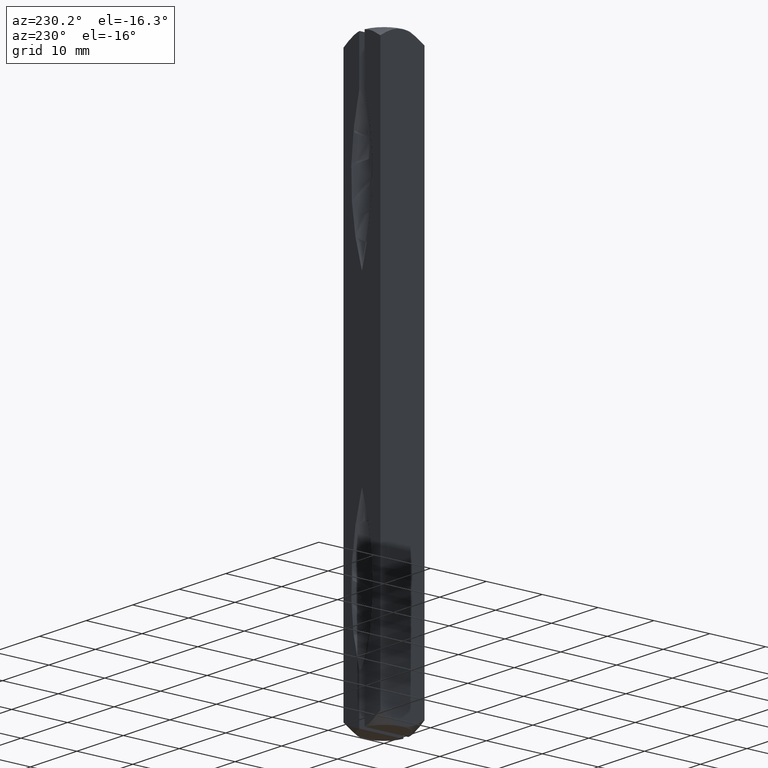
[diagram: clean part render]
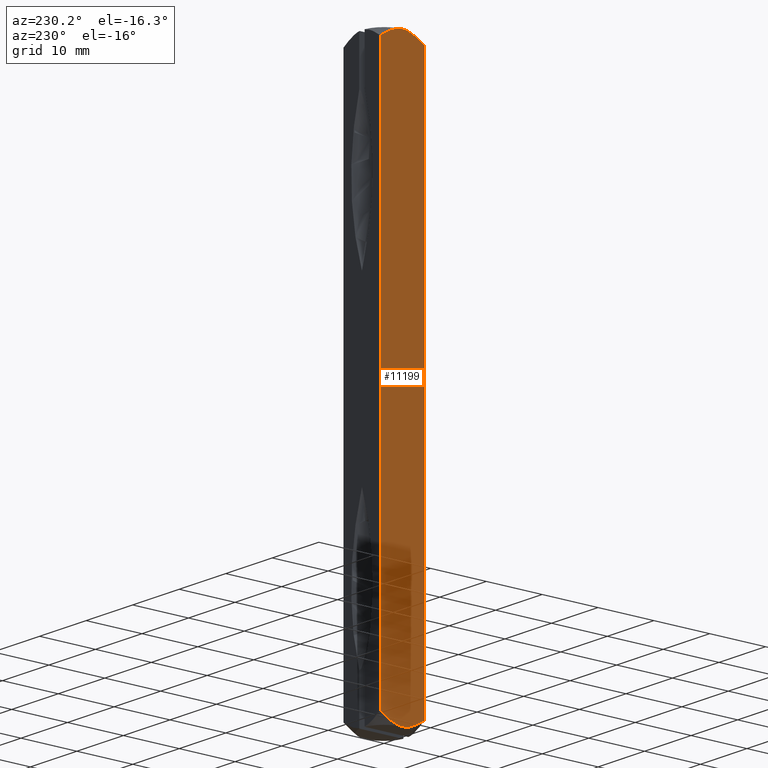
[diagram: same view with one face highlighted and labeled with its STEP entity id]
A machine part, auxiliary view. The second image highlights one B-rep face of the part: STEP entity #11199.
In plain terms, the highlighted planar face has unit normal (1, 0, -0).
Its self-contained STEP definition (entity closure, byte-faithful):
#62 = EDGE_CURVE ( 'NONE', #3710, #4992, #6410, .T. ) ;
#83 = CARTESIAN_POINT ( 'NONE',  ( -3.950000000000000178, -1.426481765605648322, 49.76418261868120396 ) ) ;
#98 = CARTESIAN_POINT ( 'NONE',  ( -3.949999999999999734, 1.429762475793790122, -49.76282657858041603 ) ) ;
#112 = CARTESIAN_POINT ( 'NONE',  ( -3.950000000000000178, 3.949999999999999734, -48.36385642862627776 ) ) ;
#121 = VERTEX_POINT ( 'NONE', #7784 ) ;
#152 = CARTESIAN_POINT ( 'NONE',  ( -3.950000000000000178, 3.655973563918085922, -48.57176451542790829 ) ) ;
#173 = CARTESIAN_POINT ( 'NONE',  ( -3.949999999999999734, -2.417758574424760720, 49.32781484060201649 ) ) ;
#179 = DIRECTION ( 'NONE',  ( 1.000000000000000000, 2.195852501236464545E-16, -0.000000000000000000 ) ) ;
#476 = CARTESIAN_POINT ( 'NONE',  ( -3.950000000000000178, 3.949999999999999734, 48.36385642862627776 ) ) ;
#620 = CARTESIAN_POINT ( 'NONE',  ( -3.949999999999998845, -3.950000000000000178, 50.00000000000000000 ) ) ;
#673 = B_SPLINE_CURVE_WITH_KNOTS ( 'NONE', 3,
 ( #10994, #8117, #4625, #9036, #173, #9936, #83, #7253, #6434, #5548 ),
 .UNSPECIFIED., .F., .F.,
 ( 4, 2, 2, 2, 4 ),
 ( 0.004661118549124539795, 0.005743105757456757124, 0.006825092965788974453, 0.007907080174121193517, 0.008989067382453410845 ),
 .UNSPECIFIED. ) ;
#898 = EDGE_LOOP ( 'NONE', ( #8969, #5207, #4793, #4719, #4458, #8557 ) ) ;
#929 = CARTESIAN_POINT ( 'NONE',  ( -3.949999999999997957, -1.764010919286908674, -49.63366200965240438 ) ) ;
#1483 = CARTESIAN_POINT ( 'NONE',  ( -3.950000000000000178, 1.773176239120489051, 49.62994502284323772 ) ) ;
#1515 = CARTESIAN_POINT ( 'NONE',  ( -3.950000000000000178, 0.7264207757584910663, 49.93773969935142532 ) ) ;
#1690 = VERTEX_POINT ( 'NONE', #7367 ) ;
#1835 = CARTESIAN_POINT ( 'NONE',  ( -3.949999999999999734, -0.7197550765702169784, -49.94946699896204478 ) ) ;
#1930 = CARTESIAN_POINT ( 'NONE',  ( -3.950000000000001954, 3.357042091706849529, -48.77184744586126897 ) ) ;
#2331 = CARTESIAN_POINT ( 'NONE',  ( -3.950000000000000178, 3.949999999999999734, 48.36385642862627776 ) ) ;
#2491 = EDGE_CURVE ( 'NONE', #1690, #5080, #6700, .T. ) ;
#2688 = CARTESIAN_POINT ( 'NONE',  ( -3.949999999999999734, 0.9040495695010957178, -49.90139150385238054 ) ) ;
#2705 = CARTESIAN_POINT ( 'NONE',  ( -3.949999999999997957, -2.734892828548048715, -49.15188573252412141 ) ) ;
#3231 = CARTESIAN_POINT ( 'NONE',  ( -3.950000000000000178, 0.3655058691550639449, 49.98715504755813299 ) ) ;
#3272 = VERTEX_POINT ( 'NONE', #112 ) ;
#3278 = CARTESIAN_POINT ( 'NONE',  ( -3.949999999999999734, 0.9040495695010957178, 49.90139150385238054 ) ) ;
#3697 = CARTESIAN_POINT ( 'NONE',  ( -3.950000000000000178, 0.1815125156036552778, -50.00000000000001421 ) ) ;
#3710 = VERTEX_POINT ( 'NONE', #8819 ) ;
#3870 = PLANE ( 'NONE',  #6954 ) ;
#4045 = CARTESIAN_POINT ( 'NONE',  ( -3.950000000000001066, 2.428864778028199556, 49.32203012751581639 ) ) ;
#4458 = ORIENTED_EDGE ( 'NONE', *, *, #10352, .T. ) ;
#4572 = CARTESIAN_POINT ( 'NONE',  ( -3.950000000000000178, 0.3655058691550639449, -49.98715504755813299 ) ) ;
#4625 = CARTESIAN_POINT ( 'NONE',  ( -3.949999999999998845, -3.354668977539354113, 48.77350836096716336 ) ) ;
#4627 = B_SPLINE_CURVE_WITH_KNOTS ( 'NONE', 3,
 ( #9051, #3697, #4572, #10861, #2688, #98, #6311, #10776, #7280, #1930, #152, #8938 ),
 .UNSPECIFIED., .F., .F.,
 ( 4, 2, 2, 2, 2, 4 ),
 ( 0.008989067382453410845, 0.009531113065977271301, 0.01007315874950113349, 0.01115725011654884920, 0.01224134148359656490, 0.01332543285064428061 ),
 .UNSPECIFIED. ) ;
#4719 = ORIENTED_EDGE ( 'NONE', *, *, #62, .F. ) ;
#4740 = DIRECTION ( 'NONE',  ( -2.195852501236464545E-16, 1.000000000000000000, 0.000000000000000000 ) ) ;
#4793 = ORIENTED_EDGE ( 'NONE', *, *, #6960, .F. ) ;
#4961 = CARTESIAN_POINT ( 'NONE',  ( -3.949999999999998845, -3.950000000000000178, -48.36385642862627776 ) ) ;
#4992 = VERTEX_POINT ( 'NONE', #4961 ) ;
#5012 = CARTESIAN_POINT ( 'NONE',  ( -3.950000000000000178, 3.655973563918085922, 48.57176451542790829 ) ) ;
#5080 = VERTEX_POINT ( 'NONE', #2331 ) ;
#5207 = ORIENTED_EDGE ( 'NONE', *, *, #7351, .F. ) ;
#5405 = DIRECTION ( 'NONE',  ( -0.000000000000000000, -0.000000000000000000, -1.000000000000000000 ) ) ;
#5436 = CARTESIAN_POINT ( 'NONE',  ( -3.949999999999999734, -0.3623204205936896294, -50.00000000000002132 ) ) ;
#5548 = CARTESIAN_POINT ( 'NONE',  ( -3.950000000000000178, -8.673617379884035472E-16, 50.00000000000000000 ) ) ;
#6311 = CARTESIAN_POINT ( 'NONE',  ( -3.950000000000000178, 1.773176239120489051, -49.62994502284323772 ) ) ;
#6363 = CARTESIAN_POINT ( 'NONE',  ( -3.950000000000000178, -8.673617379884035472E-16, -50.00000000000000000 ) ) ;
#6410 = LINE ( 'NONE', #620, #7824 ) ;
#6434 = CARTESIAN_POINT ( 'NONE',  ( -3.949999999999999734, -0.3623204205936896294, 50.00000000000002132 ) ) ;
#6502 = EDGE_CURVE ( 'NONE', #5080, #3272, #7559, .T. ) ;
#6517 = B_SPLINE_CURVE_WITH_KNOTS ( 'NONE', 3,
 ( #10734, #8045, #10840, #2705, #9870, #929, #7187, #1835, #5436, #6363 ),
 .UNSPECIFIED., .F., .F.,
 ( 4, 2, 2, 2, 4 ),
 ( 0.004661118549124539795, 0.005743105757456757124, 0.006825092965788974453, 0.007907080174121193517, 0.008989067382453410845 ),
 .UNSPECIFIED. ) ;
#6638 = CARTESIAN_POINT ( 'NONE',  ( -3.950000000000000178, -8.673617379884035472E-16, 50.00000000000000000 ) ) ;
#6700 = B_SPLINE_CURVE_WITH_KNOTS ( 'NONE', 3,
 ( #6638, #10399, #3231, #1515, #3278, #11345, #1483, #4045, #6823, #6863, #5012, #476 ),
 .UNSPECIFIED., .F., .F.,
 ( 4, 2, 2, 2, 2, 4 ),
 ( 0.008989067382453410845, 0.009531113065977271301, 0.01007315874950113349, 0.01115725011654884920, 0.01224134148359656490, 0.01332543285064428061 ),
 .UNSPECIFIED. ) ;
#6823 = CARTESIAN_POINT ( 'NONE',  ( -3.949999999999999734, 2.743427237092639359, 49.14688379552775643 ) ) ;
#6863 = CARTESIAN_POINT ( 'NONE',  ( -3.950000000000001954, 3.357042091706849529, 48.77184744586126897 ) ) ;
#6954 = AXIS2_PLACEMENT_3D ( 'NONE', #10146, #179, #4740 ) ;
#6960 = EDGE_CURVE ( 'NONE', #4992, #121, #6517, .T. ) ;
#7043 = FACE_OUTER_BOUND ( 'NONE', #898, .T. ) ;
#7187 = CARTESIAN_POINT ( 'NONE',  ( -3.950000000000000178, -1.426481765605648322, -49.76418261868120396 ) ) ;
#7253 = CARTESIAN_POINT ( 'NONE',  ( -3.949999999999999734, -0.7197550765702169784, 49.94946699896204478 ) ) ;
#7280 = CARTESIAN_POINT ( 'NONE',  ( -3.949999999999999734, 2.743427237092639359, -49.14688379552775643 ) ) ;
#7304 = CARTESIAN_POINT ( 'NONE',  ( -3.950000000000000178, 3.949999999999999734, 50.00000000000000000 ) ) ;
#7351 = EDGE_CURVE ( 'NONE', #121, #3272, #4627, .T. ) ;
#7367 = CARTESIAN_POINT ( 'NONE',  ( -3.950000000000000178, -8.673617379884035472E-16, 50.00000000000000000 ) ) ;
#7559 = LINE ( 'NONE', #7304, #10672 ) ;
#7784 = CARTESIAN_POINT ( 'NONE',  ( -3.950000000000000178, -8.673617379884035472E-16, -50.00000000000000000 ) ) ;
#7824 = VECTOR ( 'NONE', #8507, 1000.000000000000000 ) ;
#8045 = CARTESIAN_POINT ( 'NONE',  ( -3.949999999999999734, -3.655181394504525727, -48.57232466379210933 ) ) ;
#8117 = CARTESIAN_POINT ( 'NONE',  ( -3.949999999999999734, -3.655181394504525727, 48.57232466379210933 ) ) ;
#8507 = DIRECTION ( 'NONE',  ( -0.000000000000000000, -0.000000000000000000, -1.000000000000000000 ) ) ;
#8557 = ORIENTED_EDGE ( 'NONE', *, *, #2491, .T. ) ;
#8819 = CARTESIAN_POINT ( 'NONE',  ( -3.949999999999998845, -3.950000000000000178, 48.36385642862627776 ) ) ;
#8938 = CARTESIAN_POINT ( 'NONE',  ( -3.950000000000000178, 3.949999999999999734, -48.36385642862627776 ) ) ;
#8969 = ORIENTED_EDGE ( 'NONE', *, *, #6502, .T. ) ;
#9036 = CARTESIAN_POINT ( 'NONE',  ( -3.949999999999997957, -2.734892828548048715, 49.15188573252412141 ) ) ;
#9051 = CARTESIAN_POINT ( 'NONE',  ( -3.950000000000000178, -8.673617379884035472E-16, -50.00000000000000000 ) ) ;
#9870 = CARTESIAN_POINT ( 'NONE',  ( -3.949999999999999734, -2.417758574424760720, -49.32781484060201649 ) ) ;
#9936 = CARTESIAN_POINT ( 'NONE',  ( -3.949999999999997957, -1.764010919286908674, 49.63366200965240438 ) ) ;
#10146 = CARTESIAN_POINT ( 'NONE',  ( -3.950000000000000178, 3.949999999999999734, 50.00000000000000000 ) ) ;
#10352 = EDGE_CURVE ( 'NONE', #3710, #1690, #673, .T. ) ;
#10399 = CARTESIAN_POINT ( 'NONE',  ( -3.950000000000000178, 0.1815125156036552778, 50.00000000000001421 ) ) ;
#10672 = VECTOR ( 'NONE', #5405, 1000.000000000000000 ) ;
#10734 = CARTESIAN_POINT ( 'NONE',  ( -3.949999999999998845, -3.950000000000000178, -48.36385642862627776 ) ) ;
#10776 = CARTESIAN_POINT ( 'NONE',  ( -3.950000000000001066, 2.428864778028199556, -49.32203012751581639 ) ) ;
#10840 = CARTESIAN_POINT ( 'NONE',  ( -3.949999999999998845, -3.354668977539354113, -48.77350836096716336 ) ) ;
#10861 = CARTESIAN_POINT ( 'NONE',  ( -3.950000000000000178, 0.7264207757584910663, -49.93773969935142532 ) ) ;
#10994 = CARTESIAN_POINT ( 'NONE',  ( -3.949999999999998845, -3.950000000000000178, 48.36385642862627776 ) ) ;
#11199 = ADVANCED_FACE ( 'NONE', ( #7043 ), #3870, .F. ) ;
#11345 = CARTESIAN_POINT ( 'NONE',  ( -3.949999999999999734, 1.429762475793790122, 49.76282657858041603 ) ) ;